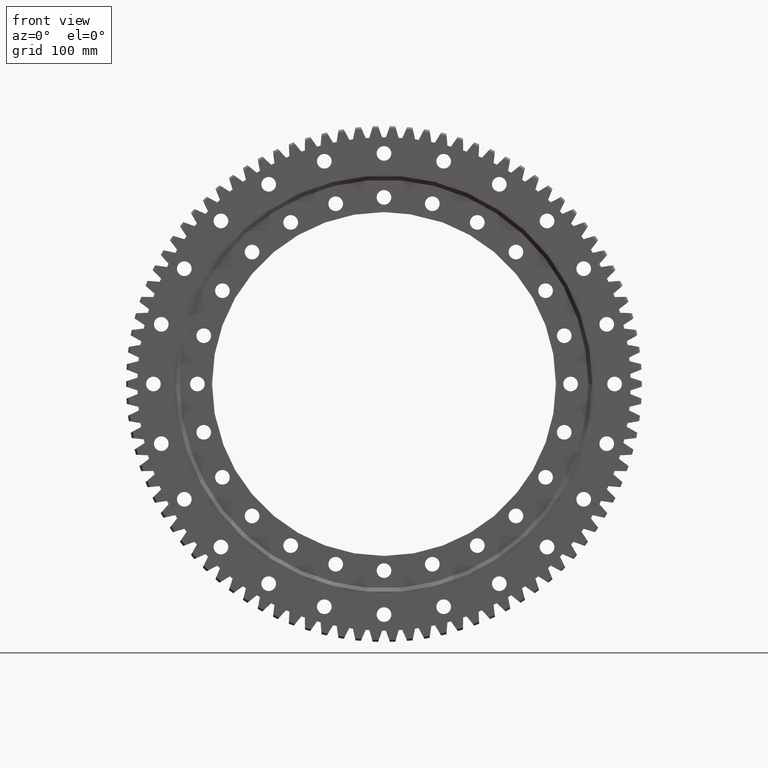
[diagram: clean part render]
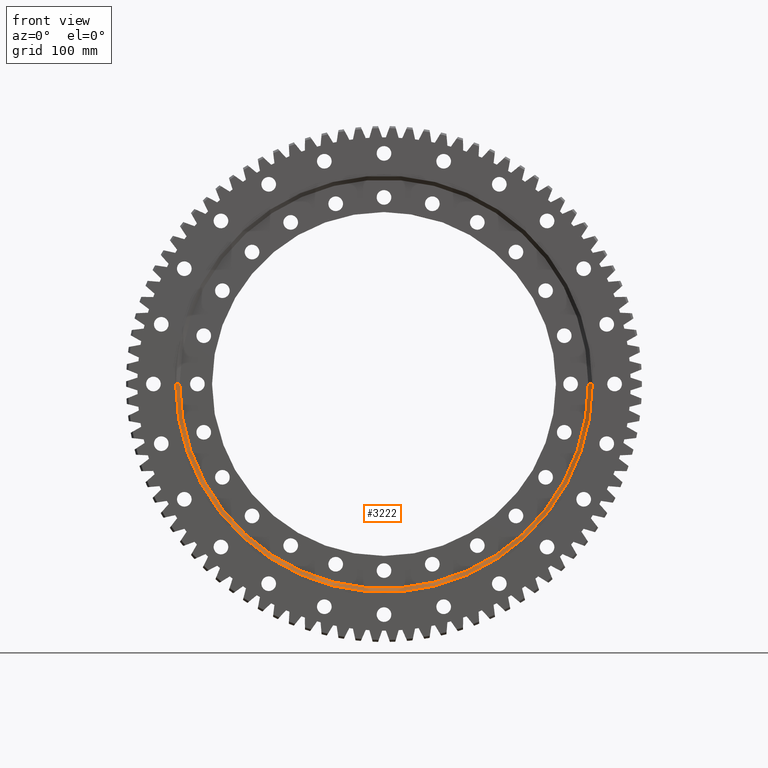
[diagram: same view with one face highlighted and labeled with its STEP entity id]
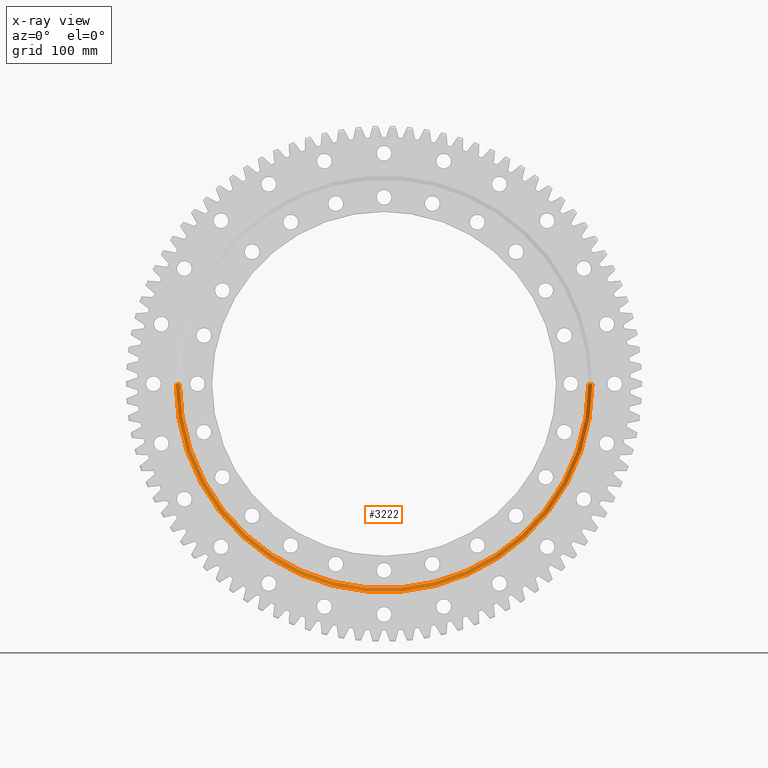
[diagram: x-ray of the same camera — body ghosted, the highlighted face saturated]
A machine part, front view. The second image highlights one B-rep face of the part: STEP entity #3222.
The next image is the same camera in x-ray: the body ghosted, the highlighted face saturated — about 0% of this face is hidden behind the body in this view.
In plain terms, the highlighted conical surface has half-angle 49.914 deg.
Its self-contained STEP definition (entity closure, byte-faithful):
#698 = CONICAL_SURFACE ( 'NONE', #3572, 312.5874999999999200, 0.8711601305813165800 ) ;
#1171 = DIRECTION ( 'NONE',  ( -1.000000000000000000, 1.810613649651660300E-016, 0.0000000000000000000 ) ) ;
#1671 = VERTEX_POINT ( 'NONE', #11777 ) ;
#1866 = DIRECTION ( 'NONE',  ( -1.000000000000000000, 1.775859598712611300E-016, 0.0000000000000000000 ) ) ;
#2255 = VERTEX_POINT ( 'NONE', #21479 ) ;
#3170 = DIRECTION ( 'NONE',  ( 0.7650765054985611000, -0.6439393921279470400, 0.0000000000000000000 ) ) ;
#3222 = ADVANCED_FACE ( 'NONE', ( #11720 ), #698, .F. ) ;
#3283 = VECTOR ( 'NONE', #8159, 1000.000000000000100 ) ;
#3405 = LINE ( 'NONE', #18793, #13744 ) ;
#3572 = AXIS2_PLACEMENT_3D ( 'NONE', #20783, #22743, #24712 ) ;
#4219 = CARTESIAN_POINT ( 'NONE',  ( -312.5874999999999200, -33.04999999999994000, 3.828092813284731200E-014 ) ) ;
#4259 = CARTESIAN_POINT ( 'NONE',  ( -312.5874999999999200, -33.04999999999994000, 3.828092813284731200E-014 ) ) ;
#4752 = EDGE_CURVE ( 'NONE', #1671, #24225, #15980, .T. ) ;
#8159 = DIRECTION ( 'NONE',  ( -0.7650765054985613200, -0.6439393921279468200, 9.369484935616554100E-017 ) ) ;
#8457 = LINE ( 'NONE', #4219, #3283 ) ;
#9473 = EDGE_CURVE ( 'NONE', #20090, #2255, #10778, .T. ) ;
#10778 = CIRCLE ( 'NONE', #14124, 306.5874999999999200 ) ;
#11720 = FACE_OUTER_BOUND ( 'NONE', #17886, .T. ) ;
#11777 = CARTESIAN_POINT ( 'NONE',  ( 312.5874999999999200, -33.05000000000005400, 0.0000000000000000000 ) ) ;
#12875 = DIRECTION ( 'NONE',  ( 1.786923420260216300E-016, 1.000000000000000000, -0.0000000000000000000 ) ) ;
#13536 = DIRECTION ( 'NONE',  ( 1.786923420260216300E-016, 1.000000000000000000, -0.0000000000000000000 ) ) ;
#13744 = VECTOR ( 'NONE', #3170, 1000.000000000000100 ) ;
#14124 = AXIS2_PLACEMENT_3D ( 'NONE', #24577, #12875, #1171 ) ;
#15980 = CIRCLE ( 'NONE', #16826, 312.5874999999999200 ) ;
#16826 = AXIS2_PLACEMENT_3D ( 'NONE', #25257, #13536, #1866 ) ;
#17437 = ORIENTED_EDGE ( 'NONE', *, *, #17609, .T. ) ;
#17609 = EDGE_CURVE ( 'NONE', #2255, #24225, #8457, .T. ) ;
#17886 = EDGE_LOOP ( 'NONE', ( #18037, #17437, #19838, #22459 ) ) ;
#18037 = ORIENTED_EDGE ( 'NONE', *, *, #9473, .T. ) ;
#18793 = CARTESIAN_POINT ( 'NONE',  ( 312.5874999999999200, -33.05000000000005400, 0.0000000000000000000 ) ) ;
#19838 = ORIENTED_EDGE ( 'NONE', *, *, #4752, .F. ) ;
#20090 = VERTEX_POINT ( 'NONE', #21152 ) ;
#20783 = CARTESIAN_POINT ( 'NONE',  ( -1.154363320088463800E-014, -33.04999999999999700, 0.0000000000000000000 ) ) ;
#21152 = CARTESIAN_POINT ( 'NONE',  ( 306.5874999999999200, -28.00000000000011400, 0.0000000000000000000 ) ) ;
#21479 = CARTESIAN_POINT ( 'NONE',  ( -306.5874999999999200, -28.00000000000000400, 3.791353409310310600E-014 ) ) ;
#22459 = ORIENTED_EDGE ( 'NONE', *, *, #23253, .F. ) ;
#22743 = DIRECTION ( 'NONE',  ( -1.786923420260216300E-016, -1.000000000000000000, 0.0000000000000000000 ) ) ;
#23253 = EDGE_CURVE ( 'NONE', #20090, #1671, #3405, .T. ) ;
#24225 = VERTEX_POINT ( 'NONE', #4259 ) ;
#24577 = CARTESIAN_POINT ( 'NONE',  ( -1.064123687365323800E-014, -28.00000000000006000, 0.0000000000000000000 ) ) ;
#24712 = DIRECTION ( 'NONE',  ( 1.000000000000000000, -1.775859598712611300E-016, 0.0000000000000000000 ) ) ;
#25257 = CARTESIAN_POINT ( 'NONE',  ( -1.154363320088463800E-014, -33.04999999999999700, 0.0000000000000000000 ) ) ;